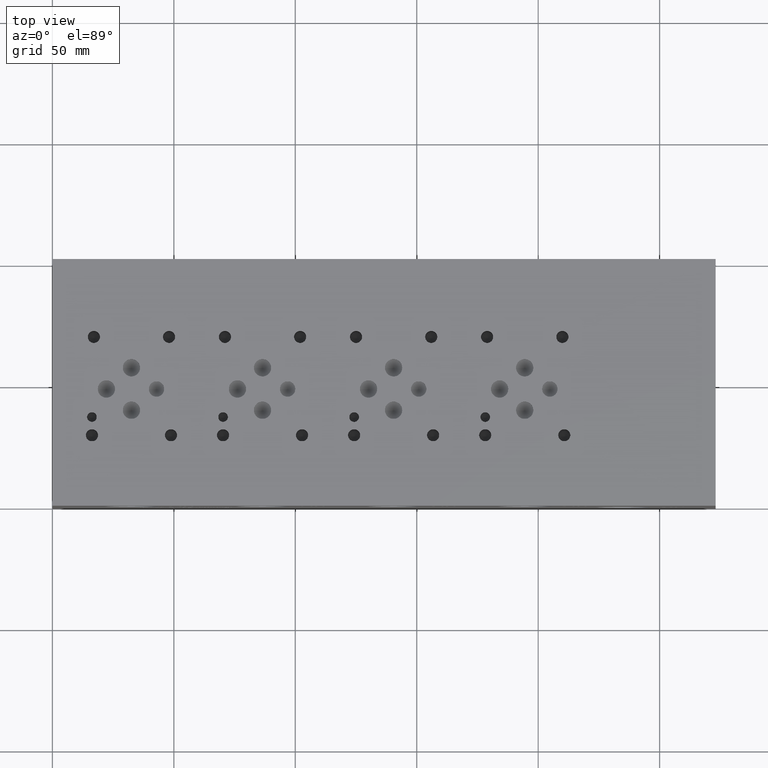
[diagram: clean part render]
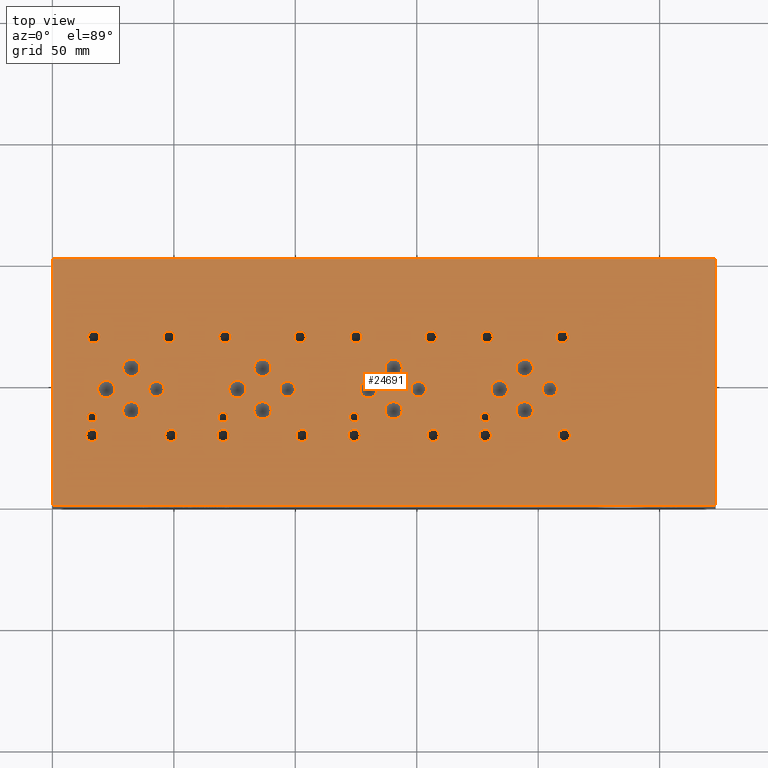
[diagram: same view with one face highlighted and labeled with its STEP entity id]
A machine part, top view. The second image highlights one B-rep face of the part: STEP entity #24691.
In plain terms, the highlighted planar face has unit normal (0, 0, 1).
Its self-contained STEP definition (entity closure, byte-faithful):
#641=CIRCLE('',#25882,2.5019);
#642=CIRCLE('',#25883,2.5019);
#648=CIRCLE('',#25893,2.5019);
#649=CIRCLE('',#25894,2.5019);
#655=CIRCLE('',#25904,2.5019);
#656=CIRCLE('',#25905,2.5019);
#662=CIRCLE('',#25915,2.5019);
#663=CIRCLE('',#25916,2.5019);
#669=CIRCLE('',#25926,2.5019);
#670=CIRCLE('',#25927,2.5019);
#676=CIRCLE('',#25937,2.5019);
#677=CIRCLE('',#25938,2.5019);
#683=CIRCLE('',#25948,2.5019);
#684=CIRCLE('',#25949,2.5019);
#690=CIRCLE('',#25959,2.5019);
#691=CIRCLE('',#25960,2.5019);
#697=CIRCLE('',#25970,2.5019);
#698=CIRCLE('',#25971,2.5019);
#704=CIRCLE('',#25981,2.5019);
#705=CIRCLE('',#25982,2.5019);
#711=CIRCLE('',#25992,2.5019);
#712=CIRCLE('',#25993,2.5019);
#718=CIRCLE('',#26003,2.5019);
#719=CIRCLE('',#26004,2.5019);
#722=CIRCLE('',#26010,3.175);
#723=CIRCLE('',#26011,3.175);
#726=CIRCLE('',#26016,3.175);
#727=CIRCLE('',#26017,3.175);
#730=CIRCLE('',#26022,3.175);
#731=CIRCLE('',#26023,3.175);
#734=CIRCLE('',#26028,3.175);
#735=CIRCLE('',#26029,3.175);
#738=CIRCLE('',#26034,3.5687);
#739=CIRCLE('',#26035,3.5687);
#742=CIRCLE('',#26040,3.5687);
#743=CIRCLE('',#26041,3.5687);
#746=CIRCLE('',#26046,3.5687);
#747=CIRCLE('',#26047,3.5687);
#750=CIRCLE('',#26052,3.5687);
#751=CIRCLE('',#26053,3.5687);
#754=CIRCLE('',#26058,3.5687);
#755=CIRCLE('',#26059,3.5687);
#758=CIRCLE('',#26064,3.5687);
#759=CIRCLE('',#26065,3.5687);
#762=CIRCLE('',#26070,3.5687);
#763=CIRCLE('',#26071,3.5687);
#766=CIRCLE('',#26076,3.5687);
#767=CIRCLE('',#26077,3.5687);
#770=CIRCLE('',#26082,3.5687);
#771=CIRCLE('',#26083,3.5687);
#774=CIRCLE('',#26088,3.5687);
#775=CIRCLE('',#26089,3.5687);
#778=CIRCLE('',#26094,3.5687);
#779=CIRCLE('',#26095,3.5687);
#782=CIRCLE('',#26100,3.5687);
#783=CIRCLE('',#26101,3.5687);
#786=CIRCLE('',#26106,1.9812);
#787=CIRCLE('',#26107,1.9812);
#790=CIRCLE('',#26112,1.9812);
#791=CIRCLE('',#26113,1.9812);
#794=CIRCLE('',#26118,1.9812);
#795=CIRCLE('',#26119,1.9812);
#798=CIRCLE('',#26124,1.9812);
#799=CIRCLE('',#26125,1.9812);
#805=CIRCLE('',#26134,2.5019);
#806=CIRCLE('',#26135,2.5019);
#812=CIRCLE('',#26145,2.5019);
#813=CIRCLE('',#26146,2.5019);
#819=CIRCLE('',#26156,2.5019);
#820=CIRCLE('',#26157,2.5019);
#826=CIRCLE('',#26167,2.5019);
#827=CIRCLE('',#26168,2.5019);
#1014=FACE_BOUND('',#4921,.T.);
#1015=FACE_BOUND('',#4922,.T.);
#1016=FACE_BOUND('',#4923,.T.);
#1017=FACE_BOUND('',#4924,.T.);
#1018=FACE_BOUND('',#4925,.T.);
#1019=FACE_BOUND('',#4926,.T.);
#1020=FACE_BOUND('',#4927,.T.);
#1021=FACE_BOUND('',#4928,.T.);
#1022=FACE_BOUND('',#4929,.T.);
#1023=FACE_BOUND('',#4930,.T.);
#1024=FACE_BOUND('',#4931,.T.);
#1025=FACE_BOUND('',#4932,.T.);
#1026=FACE_BOUND('',#4933,.T.);
#1027=FACE_BOUND('',#4934,.T.);
#1028=FACE_BOUND('',#4935,.T.);
#1029=FACE_BOUND('',#4936,.T.);
#1030=FACE_BOUND('',#4937,.T.);
#1031=FACE_BOUND('',#4938,.T.);
#1032=FACE_BOUND('',#4939,.T.);
#1033=FACE_BOUND('',#4940,.T.);
#1034=FACE_BOUND('',#4941,.T.);
#1035=FACE_BOUND('',#4942,.T.);
#1036=FACE_BOUND('',#4943,.T.);
#1037=FACE_BOUND('',#4944,.T.);
#1038=FACE_BOUND('',#4945,.T.);
#1039=FACE_BOUND('',#4946,.T.);
#1040=FACE_BOUND('',#4947,.T.);
#1041=FACE_BOUND('',#4948,.T.);
#1042=FACE_BOUND('',#4949,.T.);
#1043=FACE_BOUND('',#4950,.T.);
#1044=FACE_BOUND('',#4951,.T.);
#1045=FACE_BOUND('',#4952,.T.);
#1046=FACE_BOUND('',#4953,.T.);
#1047=FACE_BOUND('',#4954,.T.);
#1048=FACE_BOUND('',#4955,.T.);
#1049=FACE_BOUND('',#4956,.T.);
#3463=FACE_OUTER_BOUND('',#4920,.T.);
#4920=EDGE_LOOP('',(#21766,#21767,#21768,#21769));
#4921=EDGE_LOOP('',(#21770,#21771));
#4922=EDGE_LOOP('',(#21772,#21773));
#4923=EDGE_LOOP('',(#21774,#21775));
#4924=EDGE_LOOP('',(#21776,#21777));
#4925=EDGE_LOOP('',(#21778,#21779));
#4926=EDGE_LOOP('',(#21780,#21781));
#4927=EDGE_LOOP('',(#21782,#21783));
#4928=EDGE_LOOP('',(#21784,#21785));
#4929=EDGE_LOOP('',(#21786,#21787));
#4930=EDGE_LOOP('',(#21788,#21789));
#4931=EDGE_LOOP('',(#21790,#21791));
#4932=EDGE_LOOP('',(#21792,#21793));
#4933=EDGE_LOOP('',(#21794,#21795));
#4934=EDGE_LOOP('',(#21796,#21797));
#4935=EDGE_LOOP('',(#21798,#21799));
#4936=EDGE_LOOP('',(#21800,#21801));
#4937=EDGE_LOOP('',(#21802,#21803));
#4938=EDGE_LOOP('',(#21804,#21805));
#4939=EDGE_LOOP('',(#21806,#21807));
#4940=EDGE_LOOP('',(#21808,#21809));
#4941=EDGE_LOOP('',(#21810,#21811));
#4942=EDGE_LOOP('',(#21812,#21813));
#4943=EDGE_LOOP('',(#21814,#21815));
#4944=EDGE_LOOP('',(#21816,#21817));
#4945=EDGE_LOOP('',(#21818,#21819));
#4946=EDGE_LOOP('',(#21820,#21821));
#4947=EDGE_LOOP('',(#21822,#21823));
#4948=EDGE_LOOP('',(#21824,#21825));
#4949=EDGE_LOOP('',(#21826,#21827));
#4950=EDGE_LOOP('',(#21828,#21829));
#4951=EDGE_LOOP('',(#21830,#21831));
#4952=EDGE_LOOP('',(#21832,#21833));
#4953=EDGE_LOOP('',(#21834,#21835));
#4954=EDGE_LOOP('',(#21836,#21837));
#4955=EDGE_LOOP('',(#21838,#21839));
#4956=EDGE_LOOP('',(#21840,#21841));
#5395=LINE('',#33496,#7491);
#5657=LINE('',#34897,#7753);
#5716=LINE('',#35160,#7812);
#6055=LINE('',#37522,#8151);
#7491=VECTOR('',#26959,10.);
#7753=VECTOR('',#27401,10.);
#7812=VECTOR('',#27506,10.);
#8151=VECTOR('',#28035,10.);
#9574=VERTEX_POINT('',#33493);
#9575=VERTEX_POINT('',#33495);
#9824=VERTEX_POINT('',#34896);
#9877=VERTEX_POINT('',#35158);
#11313=VERTEX_POINT('',#42728);
#11314=VERTEX_POINT('',#42729);
#11321=VERTEX_POINT('',#42750);
#11322=VERTEX_POINT('',#42751);
#11329=VERTEX_POINT('',#42772);
#11330=VERTEX_POINT('',#42773);
#11337=VERTEX_POINT('',#42794);
#11338=VERTEX_POINT('',#42795);
#11345=VERTEX_POINT('',#42816);
#11346=VERTEX_POINT('',#42817);
#11353=VERTEX_POINT('',#42838);
#11354=VERTEX_POINT('',#42839);
#11361=VERTEX_POINT('',#42860);
#11362=VERTEX_POINT('',#42861);
#11369=VERTEX_POINT('',#42882);
#11370=VERTEX_POINT('',#42883);
#11377=VERTEX_POINT('',#42904);
#11378=VERTEX_POINT('',#42905);
#11385=VERTEX_POINT('',#42926);
#11386=VERTEX_POINT('',#42927);
#11393=VERTEX_POINT('',#42948);
#11394=VERTEX_POINT('',#42949);
#11401=VERTEX_POINT('',#42970);
#11402=VERTEX_POINT('',#42971);
#11406=VERTEX_POINT('',#42985);
#11407=VERTEX_POINT('',#42986);
#11411=VERTEX_POINT('',#42998);
#11412=VERTEX_POINT('',#42999);
#11416=VERTEX_POINT('',#43011);
#11417=VERTEX_POINT('',#43012);
#11421=VERTEX_POINT('',#43024);
#11422=VERTEX_POINT('',#43025);
#11426=VERTEX_POINT('',#43037);
#11427=VERTEX_POINT('',#43038);
#11431=VERTEX_POINT('',#43050);
#11432=VERTEX_POINT('',#43051);
#11436=VERTEX_POINT('',#43063);
#11437=VERTEX_POINT('',#43064);
#11441=VERTEX_POINT('',#43076);
#11442=VERTEX_POINT('',#43077);
#11446=VERTEX_POINT('',#43089);
#11447=VERTEX_POINT('',#43090);
#11451=VERTEX_POINT('',#43102);
#11452=VERTEX_POINT('',#43103);
#11456=VERTEX_POINT('',#43115);
#11457=VERTEX_POINT('',#43116);
#11461=VERTEX_POINT('',#43128);
#11462=VERTEX_POINT('',#43129);
#11466=VERTEX_POINT('',#43141);
#11467=VERTEX_POINT('',#43142);
#11471=VERTEX_POINT('',#43154);
#11472=VERTEX_POINT('',#43155);
#11476=VERTEX_POINT('',#43167);
#11477=VERTEX_POINT('',#43168);
#11481=VERTEX_POINT('',#43180);
#11482=VERTEX_POINT('',#43181);
#11486=VERTEX_POINT('',#43193);
#11487=VERTEX_POINT('',#43194);
#11491=VERTEX_POINT('',#43206);
#11492=VERTEX_POINT('',#43207);
#11496=VERTEX_POINT('',#43219);
#11497=VERTEX_POINT('',#43220);
#11501=VERTEX_POINT('',#43232);
#11502=VERTEX_POINT('',#43233);
#11509=VERTEX_POINT('',#43252);
#11510=VERTEX_POINT('',#43253);
#11517=VERTEX_POINT('',#43274);
#11518=VERTEX_POINT('',#43275);
#11525=VERTEX_POINT('',#43296);
#11526=VERTEX_POINT('',#43297);
#11533=VERTEX_POINT('',#43318);
#11534=VERTEX_POINT('',#43319);
#12156=EDGE_CURVE('',#9575,#9574,#5395,.T.);
#12526=EDGE_CURVE('',#9824,#9575,#5657,.T.);
#12605=EDGE_CURVE('',#9574,#9877,#5716,.T.);
#13144=EDGE_CURVE('',#9877,#9824,#6055,.T.);
#14699=EDGE_CURVE('',#11313,#11314,#641,.T.);
#14700=EDGE_CURVE('',#11314,#11313,#642,.T.);
#14709=EDGE_CURVE('',#11321,#11322,#648,.T.);
#14710=EDGE_CURVE('',#11322,#11321,#649,.T.);
#14719=EDGE_CURVE('',#11329,#11330,#655,.T.);
#14720=EDGE_CURVE('',#11330,#11329,#656,.T.);
#14729=EDGE_CURVE('',#11337,#11338,#662,.T.);
#14730=EDGE_CURVE('',#11338,#11337,#663,.T.);
#14739=EDGE_CURVE('',#11345,#11346,#669,.T.);
#14740=EDGE_CURVE('',#11346,#11345,#670,.T.);
#14749=EDGE_CURVE('',#11353,#11354,#676,.T.);
#14750=EDGE_CURVE('',#11354,#11353,#677,.T.);
#14759=EDGE_CURVE('',#11361,#11362,#683,.T.);
#14760=EDGE_CURVE('',#11362,#11361,#684,.T.);
#14769=EDGE_CURVE('',#11369,#11370,#690,.T.);
#14770=EDGE_CURVE('',#11370,#11369,#691,.T.);
#14779=EDGE_CURVE('',#11377,#11378,#697,.T.);
#14780=EDGE_CURVE('',#11378,#11377,#698,.T.);
#14789=EDGE_CURVE('',#11385,#11386,#704,.T.);
#14790=EDGE_CURVE('',#11386,#11385,#705,.T.);
#14799=EDGE_CURVE('',#11393,#11394,#711,.T.);
#14800=EDGE_CURVE('',#11394,#11393,#712,.T.);
#14809=EDGE_CURVE('',#11401,#11402,#718,.T.);
#14810=EDGE_CURVE('',#11402,#11401,#719,.T.);
#14816=EDGE_CURVE('',#11406,#11407,#722,.T.);
#14817=EDGE_CURVE('',#11407,#11406,#723,.T.);
#14822=EDGE_CURVE('',#11411,#11412,#726,.T.);
#14823=EDGE_CURVE('',#11412,#11411,#727,.T.);
#14828=EDGE_CURVE('',#11416,#11417,#730,.T.);
#14829=EDGE_CURVE('',#11417,#11416,#731,.T.);
#14834=EDGE_CURVE('',#11421,#11422,#734,.T.);
#14835=EDGE_CURVE('',#11422,#11421,#735,.T.);
#14840=EDGE_CURVE('',#11426,#11427,#738,.T.);
#14841=EDGE_CURVE('',#11427,#11426,#739,.T.);
#14846=EDGE_CURVE('',#11431,#11432,#742,.T.);
#14847=EDGE_CURVE('',#11432,#11431,#743,.T.);
#14852=EDGE_CURVE('',#11436,#11437,#746,.T.);
#14853=EDGE_CURVE('',#11437,#11436,#747,.T.);
#14858=EDGE_CURVE('',#11441,#11442,#750,.T.);
#14859=EDGE_CURVE('',#11442,#11441,#751,.T.);
#14864=EDGE_CURVE('',#11446,#11447,#754,.T.);
#14865=EDGE_CURVE('',#11447,#11446,#755,.T.);
#14870=EDGE_CURVE('',#11451,#11452,#758,.T.);
#14871=EDGE_CURVE('',#11452,#11451,#759,.T.);
#14876=EDGE_CURVE('',#11456,#11457,#762,.T.);
#14877=EDGE_CURVE('',#11457,#11456,#763,.T.);
#14882=EDGE_CURVE('',#11461,#11462,#766,.T.);
#14883=EDGE_CURVE('',#11462,#11461,#767,.T.);
#14888=EDGE_CURVE('',#11466,#11467,#770,.T.);
#14889=EDGE_CURVE('',#11467,#11466,#771,.T.);
#14894=EDGE_CURVE('',#11471,#11472,#774,.T.);
#14895=EDGE_CURVE('',#11472,#11471,#775,.T.);
#14900=EDGE_CURVE('',#11476,#11477,#778,.T.);
#14901=EDGE_CURVE('',#11477,#11476,#779,.T.);
#14906=EDGE_CURVE('',#11481,#11482,#782,.T.);
#14907=EDGE_CURVE('',#11482,#11481,#783,.T.);
#14912=EDGE_CURVE('',#11486,#11487,#786,.T.);
#14913=EDGE_CURVE('',#11487,#11486,#787,.T.);
#14918=EDGE_CURVE('',#11491,#11492,#790,.T.);
#14919=EDGE_CURVE('',#11492,#11491,#791,.T.);
#14924=EDGE_CURVE('',#11496,#11497,#794,.T.);
#14925=EDGE_CURVE('',#11497,#11496,#795,.T.);
#14930=EDGE_CURVE('',#11501,#11502,#798,.T.);
#14931=EDGE_CURVE('',#11502,#11501,#799,.T.);
#14939=EDGE_CURVE('',#11509,#11510,#805,.T.);
#14940=EDGE_CURVE('',#11510,#11509,#806,.T.);
#14949=EDGE_CURVE('',#11517,#11518,#812,.T.);
#14950=EDGE_CURVE('',#11518,#11517,#813,.T.);
#14959=EDGE_CURVE('',#11525,#11526,#819,.T.);
#14960=EDGE_CURVE('',#11526,#11525,#820,.T.);
#14969=EDGE_CURVE('',#11533,#11534,#826,.T.);
#14970=EDGE_CURVE('',#11534,#11533,#827,.T.);
#21766=ORIENTED_EDGE('',*,*,#13144,.T.);
#21767=ORIENTED_EDGE('',*,*,#12526,.T.);
#21768=ORIENTED_EDGE('',*,*,#12156,.T.);
#21769=ORIENTED_EDGE('',*,*,#12605,.T.);
#21770=ORIENTED_EDGE('',*,*,#14699,.T.);
#21771=ORIENTED_EDGE('',*,*,#14700,.T.);
#21772=ORIENTED_EDGE('',*,*,#14709,.T.);
#21773=ORIENTED_EDGE('',*,*,#14710,.T.);
#21774=ORIENTED_EDGE('',*,*,#14719,.T.);
#21775=ORIENTED_EDGE('',*,*,#14720,.T.);
#21776=ORIENTED_EDGE('',*,*,#14729,.T.);
#21777=ORIENTED_EDGE('',*,*,#14730,.T.);
#21778=ORIENTED_EDGE('',*,*,#14739,.T.);
#21779=ORIENTED_EDGE('',*,*,#14740,.T.);
#21780=ORIENTED_EDGE('',*,*,#14749,.T.);
#21781=ORIENTED_EDGE('',*,*,#14750,.T.);
#21782=ORIENTED_EDGE('',*,*,#14759,.T.);
#21783=ORIENTED_EDGE('',*,*,#14760,.T.);
#21784=ORIENTED_EDGE('',*,*,#14769,.T.);
#21785=ORIENTED_EDGE('',*,*,#14770,.T.);
#21786=ORIENTED_EDGE('',*,*,#14779,.T.);
#21787=ORIENTED_EDGE('',*,*,#14780,.T.);
#21788=ORIENTED_EDGE('',*,*,#14789,.T.);
#21789=ORIENTED_EDGE('',*,*,#14790,.T.);
#21790=ORIENTED_EDGE('',*,*,#14799,.T.);
#21791=ORIENTED_EDGE('',*,*,#14800,.T.);
#21792=ORIENTED_EDGE('',*,*,#14809,.T.);
#21793=ORIENTED_EDGE('',*,*,#14810,.T.);
#21794=ORIENTED_EDGE('',*,*,#14816,.T.);
#21795=ORIENTED_EDGE('',*,*,#14817,.T.);
#21796=ORIENTED_EDGE('',*,*,#14822,.T.);
#21797=ORIENTED_EDGE('',*,*,#14823,.T.);
#21798=ORIENTED_EDGE('',*,*,#14828,.T.);
#21799=ORIENTED_EDGE('',*,*,#14829,.T.);
#21800=ORIENTED_EDGE('',*,*,#14834,.T.);
#21801=ORIENTED_EDGE('',*,*,#14835,.T.);
#21802=ORIENTED_EDGE('',*,*,#14840,.T.);
#21803=ORIENTED_EDGE('',*,*,#14841,.T.);
#21804=ORIENTED_EDGE('',*,*,#14846,.T.);
#21805=ORIENTED_EDGE('',*,*,#14847,.T.);
#21806=ORIENTED_EDGE('',*,*,#14852,.T.);
#21807=ORIENTED_EDGE('',*,*,#14853,.T.);
#21808=ORIENTED_EDGE('',*,*,#14858,.T.);
#21809=ORIENTED_EDGE('',*,*,#14859,.T.);
#21810=ORIENTED_EDGE('',*,*,#14864,.T.);
#21811=ORIENTED_EDGE('',*,*,#14865,.T.);
#21812=ORIENTED_EDGE('',*,*,#14870,.T.);
#21813=ORIENTED_EDGE('',*,*,#14871,.T.);
#21814=ORIENTED_EDGE('',*,*,#14876,.T.);
#21815=ORIENTED_EDGE('',*,*,#14877,.T.);
#21816=ORIENTED_EDGE('',*,*,#14882,.T.);
#21817=ORIENTED_EDGE('',*,*,#14883,.T.);
#21818=ORIENTED_EDGE('',*,*,#14888,.T.);
#21819=ORIENTED_EDGE('',*,*,#14889,.T.);
#21820=ORIENTED_EDGE('',*,*,#14894,.T.);
#21821=ORIENTED_EDGE('',*,*,#14895,.T.);
#21822=ORIENTED_EDGE('',*,*,#14900,.T.);
#21823=ORIENTED_EDGE('',*,*,#14901,.T.);
#21824=ORIENTED_EDGE('',*,*,#14906,.T.);
#21825=ORIENTED_EDGE('',*,*,#14907,.T.);
#21826=ORIENTED_EDGE('',*,*,#14912,.T.);
#21827=ORIENTED_EDGE('',*,*,#14913,.T.);
#21828=ORIENTED_EDGE('',*,*,#14918,.T.);
#21829=ORIENTED_EDGE('',*,*,#14919,.T.);
#21830=ORIENTED_EDGE('',*,*,#14924,.T.);
#21831=ORIENTED_EDGE('',*,*,#14925,.T.);
#21832=ORIENTED_EDGE('',*,*,#14930,.T.);
#21833=ORIENTED_EDGE('',*,*,#14931,.T.);
#21834=ORIENTED_EDGE('',*,*,#14939,.T.);
#21835=ORIENTED_EDGE('',*,*,#14940,.T.);
#21836=ORIENTED_EDGE('',*,*,#14949,.T.);
#21837=ORIENTED_EDGE('',*,*,#14950,.T.);
#21838=ORIENTED_EDGE('',*,*,#14959,.T.);
#21839=ORIENTED_EDGE('',*,*,#14960,.T.);
#21840=ORIENTED_EDGE('',*,*,#14969,.T.);
#21841=ORIENTED_EDGE('',*,*,#14970,.T.);
#22502=PLANE('',#26174);
#24691=ADVANCED_FACE('',(#3463,#1014,#1015,#1016,#1017,#1018,#1019,#1020,
#1021,#1022,#1023,#1024,#1025,#1026,#1027,#1028,#1029,#1030,#1031,#1032,
#1033,#1034,#1035,#1036,#1037,#1038,#1039,#1040,#1041,#1042,#1043,#1044,
#1045,#1046,#1047,#1048,#1049),#22502,.T.);
#25882=AXIS2_PLACEMENT_3D('',#42730,#30537,#30538);
#25883=AXIS2_PLACEMENT_3D('',#42731,#30539,#30540);
#25893=AXIS2_PLACEMENT_3D('',#42752,#30562,#30563);
#25894=AXIS2_PLACEMENT_3D('',#42753,#30564,#30565);
#25904=AXIS2_PLACEMENT_3D('',#42774,#30587,#30588);
#25905=AXIS2_PLACEMENT_3D('',#42775,#30589,#30590);
#25915=AXIS2_PLACEMENT_3D('',#42796,#30612,#30613);
#25916=AXIS2_PLACEMENT_3D('',#42797,#30614,#30615);
#25926=AXIS2_PLACEMENT_3D('',#42818,#30637,#30638);
#25927=AXIS2_PLACEMENT_3D('',#42819,#30639,#30640);
#25937=AXIS2_PLACEMENT_3D('',#42840,#30662,#30663);
#25938=AXIS2_PLACEMENT_3D('',#42841,#30664,#30665);
#25948=AXIS2_PLACEMENT_3D('',#42862,#30687,#30688);
#25949=AXIS2_PLACEMENT_3D('',#42863,#30689,#30690);
#25959=AXIS2_PLACEMENT_3D('',#42884,#30712,#30713);
#25960=AXIS2_PLACEMENT_3D('',#42885,#30714,#30715);
#25970=AXIS2_PLACEMENT_3D('',#42906,#30737,#30738);
#25971=AXIS2_PLACEMENT_3D('',#42907,#30739,#30740);
#25981=AXIS2_PLACEMENT_3D('',#42928,#30762,#30763);
#25982=AXIS2_PLACEMENT_3D('',#42929,#30764,#30765);
#25992=AXIS2_PLACEMENT_3D('',#42950,#30787,#30788);
#25993=AXIS2_PLACEMENT_3D('',#42951,#30789,#30790);
#26003=AXIS2_PLACEMENT_3D('',#42972,#30812,#30813);
#26004=AXIS2_PLACEMENT_3D('',#42973,#30814,#30815);
#26010=AXIS2_PLACEMENT_3D('',#42987,#30829,#30830);
#26011=AXIS2_PLACEMENT_3D('',#42988,#30831,#30832);
#26016=AXIS2_PLACEMENT_3D('',#43000,#30843,#30844);
#26017=AXIS2_PLACEMENT_3D('',#43001,#30845,#30846);
#26022=AXIS2_PLACEMENT_3D('',#43013,#30857,#30858);
#26023=AXIS2_PLACEMENT_3D('',#43014,#30859,#30860);
#26028=AXIS2_PLACEMENT_3D('',#43026,#30871,#30872);
#26029=AXIS2_PLACEMENT_3D('',#43027,#30873,#30874);
#26034=AXIS2_PLACEMENT_3D('',#43039,#30885,#30886);
#26035=AXIS2_PLACEMENT_3D('',#43040,#30887,#30888);
#26040=AXIS2_PLACEMENT_3D('',#43052,#30899,#30900);
#26041=AXIS2_PLACEMENT_3D('',#43053,#30901,#30902);
#26046=AXIS2_PLACEMENT_3D('',#43065,#30913,#30914);
#26047=AXIS2_PLACEMENT_3D('',#43066,#30915,#30916);
#26052=AXIS2_PLACEMENT_3D('',#43078,#30927,#30928);
#26053=AXIS2_PLACEMENT_3D('',#43079,#30929,#30930);
#26058=AXIS2_PLACEMENT_3D('',#43091,#30941,#30942);
#26059=AXIS2_PLACEMENT_3D('',#43092,#30943,#30944);
#26064=AXIS2_PLACEMENT_3D('',#43104,#30955,#30956);
#26065=AXIS2_PLACEMENT_3D('',#43105,#30957,#30958);
#26070=AXIS2_PLACEMENT_3D('',#43117,#30969,#30970);
#26071=AXIS2_PLACEMENT_3D('',#43118,#30971,#30972);
#26076=AXIS2_PLACEMENT_3D('',#43130,#30983,#30984);
#26077=AXIS2_PLACEMENT_3D('',#43131,#30985,#30986);
#26082=AXIS2_PLACEMENT_3D('',#43143,#30997,#30998);
#26083=AXIS2_PLACEMENT_3D('',#43144,#30999,#31000);
#26088=AXIS2_PLACEMENT_3D('',#43156,#31011,#31012);
#26089=AXIS2_PLACEMENT_3D('',#43157,#31013,#31014);
#26094=AXIS2_PLACEMENT_3D('',#43169,#31025,#31026);
#26095=AXIS2_PLACEMENT_3D('',#43170,#31027,#31028);
#26100=AXIS2_PLACEMENT_3D('',#43182,#31039,#31040);
#26101=AXIS2_PLACEMENT_3D('',#43183,#31041,#31042);
#26106=AXIS2_PLACEMENT_3D('',#43195,#31053,#31054);
#26107=AXIS2_PLACEMENT_3D('',#43196,#31055,#31056);
#26112=AXIS2_PLACEMENT_3D('',#43208,#31067,#31068);
#26113=AXIS2_PLACEMENT_3D('',#43209,#31069,#31070);
#26118=AXIS2_PLACEMENT_3D('',#43221,#31081,#31082);
#26119=AXIS2_PLACEMENT_3D('',#43222,#31083,#31084);
#26124=AXIS2_PLACEMENT_3D('',#43234,#31095,#31096);
#26125=AXIS2_PLACEMENT_3D('',#43235,#31097,#31098);
#26134=AXIS2_PLACEMENT_3D('',#43254,#31117,#31118);
#26135=AXIS2_PLACEMENT_3D('',#43255,#31119,#31120);
#26145=AXIS2_PLACEMENT_3D('',#43276,#31142,#31143);
#26146=AXIS2_PLACEMENT_3D('',#43277,#31144,#31145);
#26156=AXIS2_PLACEMENT_3D('',#43298,#31167,#31168);
#26157=AXIS2_PLACEMENT_3D('',#43299,#31169,#31170);
#26167=AXIS2_PLACEMENT_3D('',#43320,#31192,#31193);
#26168=AXIS2_PLACEMENT_3D('',#43321,#31194,#31195);
#26174=AXIS2_PLACEMENT_3D('',#43329,#31208,#31209);
#26959=DIRECTION('',(-1.,0.,0.));
#27401=DIRECTION('',(0.,1.,0.));
#27506=DIRECTION('',(0.,-1.,0.));
#28035=DIRECTION('',(1.,0.,0.));
#30537=DIRECTION('center_axis',(0.,0.,-1.));
#30538=DIRECTION('ref_axis',(1.,0.,0.));
#30539=DIRECTION('center_axis',(0.,0.,-1.));
#30540=DIRECTION('ref_axis',(1.,0.,0.));
#30562=DIRECTION('center_axis',(0.,0.,-1.));
#30563=DIRECTION('ref_axis',(1.,0.,0.));
#30564=DIRECTION('center_axis',(0.,0.,-1.));
#30565=DIRECTION('ref_axis',(1.,0.,0.));
#30587=DIRECTION('center_axis',(0.,0.,-1.));
#30588=DIRECTION('ref_axis',(1.,0.,0.));
#30589=DIRECTION('center_axis',(0.,0.,-1.));
#30590=DIRECTION('ref_axis',(1.,0.,0.));
#30612=DIRECTION('center_axis',(0.,0.,-1.));
#30613=DIRECTION('ref_axis',(1.,0.,0.));
#30614=DIRECTION('center_axis',(0.,0.,-1.));
#30615=DIRECTION('ref_axis',(1.,0.,0.));
#30637=DIRECTION('center_axis',(0.,0.,-1.));
#30638=DIRECTION('ref_axis',(1.,0.,0.));
#30639=DIRECTION('center_axis',(0.,0.,-1.));
#30640=DIRECTION('ref_axis',(1.,0.,0.));
#30662=DIRECTION('center_axis',(0.,0.,-1.));
#30663=DIRECTION('ref_axis',(1.,0.,0.));
#30664=DIRECTION('center_axis',(0.,0.,-1.));
#30665=DIRECTION('ref_axis',(1.,0.,0.));
#30687=DIRECTION('center_axis',(0.,0.,-1.));
#30688=DIRECTION('ref_axis',(1.,0.,0.));
#30689=DIRECTION('center_axis',(0.,0.,-1.));
#30690=DIRECTION('ref_axis',(1.,0.,0.));
#30712=DIRECTION('center_axis',(0.,0.,-1.));
#30713=DIRECTION('ref_axis',(1.,0.,0.));
#30714=DIRECTION('center_axis',(0.,0.,-1.));
#30715=DIRECTION('ref_axis',(1.,0.,0.));
#30737=DIRECTION('center_axis',(0.,0.,-1.));
#30738=DIRECTION('ref_axis',(1.,0.,0.));
#30739=DIRECTION('center_axis',(0.,0.,-1.));
#30740=DIRECTION('ref_axis',(1.,0.,0.));
#30762=DIRECTION('center_axis',(0.,0.,-1.));
#30763=DIRECTION('ref_axis',(1.,0.,0.));
#30764=DIRECTION('center_axis',(0.,0.,-1.));
#30765=DIRECTION('ref_axis',(1.,0.,0.));
#30787=DIRECTION('center_axis',(0.,0.,-1.));
#30788=DIRECTION('ref_axis',(1.,0.,0.));
#30789=DIRECTION('center_axis',(0.,0.,-1.));
#30790=DIRECTION('ref_axis',(1.,0.,0.));
#30812=DIRECTION('center_axis',(0.,0.,-1.));
#30813=DIRECTION('ref_axis',(1.,0.,0.));
#30814=DIRECTION('center_axis',(0.,0.,-1.));
#30815=DIRECTION('ref_axis',(1.,0.,0.));
#30829=DIRECTION('center_axis',(0.,0.,-1.));
#30830=DIRECTION('ref_axis',(1.,0.,0.));
#30831=DIRECTION('center_axis',(0.,0.,-1.));
#30832=DIRECTION('ref_axis',(1.,0.,0.));
#30843=DIRECTION('center_axis',(0.,0.,-1.));
#30844=DIRECTION('ref_axis',(1.,0.,0.));
#30845=DIRECTION('center_axis',(0.,0.,-1.));
#30846=DIRECTION('ref_axis',(1.,0.,0.));
#30857=DIRECTION('center_axis',(0.,0.,-1.));
#30858=DIRECTION('ref_axis',(1.,0.,0.));
#30859=DIRECTION('center_axis',(0.,0.,-1.));
#30860=DIRECTION('ref_axis',(1.,0.,0.));
#30871=DIRECTION('center_axis',(0.,0.,-1.));
#30872=DIRECTION('ref_axis',(1.,0.,0.));
#30873=DIRECTION('center_axis',(0.,0.,-1.));
#30874=DIRECTION('ref_axis',(1.,0.,0.));
#30885=DIRECTION('center_axis',(0.,0.,-1.));
#30886=DIRECTION('ref_axis',(1.,0.,0.));
#30887=DIRECTION('center_axis',(0.,0.,-1.));
#30888=DIRECTION('ref_axis',(1.,0.,0.));
#30899=DIRECTION('center_axis',(0.,0.,-1.));
#30900=DIRECTION('ref_axis',(1.,0.,0.));
#30901=DIRECTION('center_axis',(0.,0.,-1.));
#30902=DIRECTION('ref_axis',(1.,0.,0.));
#30913=DIRECTION('center_axis',(0.,0.,-1.));
#30914=DIRECTION('ref_axis',(1.,0.,0.));
#30915=DIRECTION('center_axis',(0.,0.,-1.));
#30916=DIRECTION('ref_axis',(1.,0.,0.));
#30927=DIRECTION('center_axis',(0.,0.,-1.));
#30928=DIRECTION('ref_axis',(1.,0.,0.));
#30929=DIRECTION('center_axis',(0.,0.,-1.));
#30930=DIRECTION('ref_axis',(1.,0.,0.));
#30941=DIRECTION('center_axis',(0.,0.,-1.));
#30942=DIRECTION('ref_axis',(1.,0.,0.));
#30943=DIRECTION('center_axis',(0.,0.,-1.));
#30944=DIRECTION('ref_axis',(1.,0.,0.));
#30955=DIRECTION('center_axis',(0.,0.,-1.));
#30956=DIRECTION('ref_axis',(1.,0.,0.));
#30957=DIRECTION('center_axis',(0.,0.,-1.));
#30958=DIRECTION('ref_axis',(1.,0.,0.));
#30969=DIRECTION('center_axis',(0.,0.,-1.));
#30970=DIRECTION('ref_axis',(1.,0.,0.));
#30971=DIRECTION('center_axis',(0.,0.,-1.));
#30972=DIRECTION('ref_axis',(1.,0.,0.));
#30983=DIRECTION('center_axis',(0.,0.,-1.));
#30984=DIRECTION('ref_axis',(1.,0.,0.));
#30985=DIRECTION('center_axis',(0.,0.,-1.));
#30986=DIRECTION('ref_axis',(1.,0.,0.));
#30997=DIRECTION('center_axis',(0.,0.,-1.));
#30998=DIRECTION('ref_axis',(1.,0.,0.));
#30999=DIRECTION('center_axis',(0.,0.,-1.));
#31000=DIRECTION('ref_axis',(1.,0.,0.));
#31011=DIRECTION('center_axis',(0.,0.,-1.));
#31012=DIRECTION('ref_axis',(1.,0.,0.));
#31013=DIRECTION('center_axis',(0.,0.,-1.));
#31014=DIRECTION('ref_axis',(1.,0.,0.));
#31025=DIRECTION('center_axis',(0.,0.,-1.));
#31026=DIRECTION('ref_axis',(1.,0.,0.));
#31027=DIRECTION('center_axis',(0.,0.,-1.));
#31028=DIRECTION('ref_axis',(1.,0.,0.));
#31039=DIRECTION('center_axis',(0.,0.,-1.));
#31040=DIRECTION('ref_axis',(1.,0.,0.));
#31041=DIRECTION('center_axis',(0.,0.,-1.));
#31042=DIRECTION('ref_axis',(1.,0.,0.));
#31053=DIRECTION('center_axis',(0.,0.,-1.));
#31054=DIRECTION('ref_axis',(1.,0.,0.));
#31055=DIRECTION('center_axis',(0.,0.,-1.));
#31056=DIRECTION('ref_axis',(1.,0.,0.));
#31067=DIRECTION('center_axis',(0.,0.,-1.));
#31068=DIRECTION('ref_axis',(1.,0.,0.));
#31069=DIRECTION('center_axis',(0.,0.,-1.));
#31070=DIRECTION('ref_axis',(1.,0.,0.));
#31081=DIRECTION('center_axis',(0.,0.,-1.));
#31082=DIRECTION('ref_axis',(1.,0.,0.));
#31083=DIRECTION('center_axis',(0.,0.,-1.));
#31084=DIRECTION('ref_axis',(1.,0.,0.));
#31095=DIRECTION('center_axis',(0.,0.,-1.));
#31096=DIRECTION('ref_axis',(1.,0.,0.));
#31097=DIRECTION('center_axis',(0.,0.,-1.));
#31098=DIRECTION('ref_axis',(1.,0.,0.));
#31117=DIRECTION('center_axis',(0.,0.,-1.));
#31118=DIRECTION('ref_axis',(1.,0.,0.));
#31119=DIRECTION('center_axis',(0.,0.,-1.));
#31120=DIRECTION('ref_axis',(1.,0.,0.));
#31142=DIRECTION('center_axis',(0.,0.,-1.));
#31143=DIRECTION('ref_axis',(1.,0.,0.));
#31144=DIRECTION('center_axis',(0.,0.,-1.));
#31145=DIRECTION('ref_axis',(1.,0.,0.));
#31167=DIRECTION('center_axis',(0.,0.,-1.));
#31168=DIRECTION('ref_axis',(1.,0.,0.));
#31169=DIRECTION('center_axis',(0.,0.,-1.));
#31170=DIRECTION('ref_axis',(1.,0.,0.));
#31192=DIRECTION('center_axis',(0.,0.,-1.));
#31193=DIRECTION('ref_axis',(1.,0.,0.));
#31194=DIRECTION('center_axis',(0.,0.,-1.));
#31195=DIRECTION('ref_axis',(1.,0.,0.));
#31208=DIRECTION('center_axis',(0.,0.,1.));
#31209=DIRECTION('ref_axis',(1.,0.,0.));
#33493=CARTESIAN_POINT('',(0.,101.6,76.2));
#33495=CARTESIAN_POINT('',(273.05,101.6,76.2));
#33496=CARTESIAN_POINT('',(273.05,101.6,76.2));
#34896=CARTESIAN_POINT('',(273.05,0.,76.2));
#34897=CARTESIAN_POINT('',(273.05,0.,76.2));
#35158=CARTESIAN_POINT('',(0.,0.,76.2));
#35160=CARTESIAN_POINT('',(0.,101.6,76.2));
#37522=CARTESIAN_POINT('',(0.,0.,76.2));
#42728=CARTESIAN_POINT('',(213.2203,28.9814,76.2));
#42729=CARTESIAN_POINT('',(208.2165,28.9814,76.2));
#42730=CARTESIAN_POINT('Origin',(210.7184,28.9814,76.2));
#42731=CARTESIAN_POINT('Origin',(210.7184,28.9814,76.2));
#42750=CARTESIAN_POINT('',(181.4703,69.469,76.2));
#42751=CARTESIAN_POINT('',(176.4665,69.469,76.2));
#42752=CARTESIAN_POINT('Origin',(178.9684,69.469,76.2));
#42753=CARTESIAN_POINT('Origin',(178.9684,69.469,76.2));
#42772=CARTESIAN_POINT('',(159.2453,28.9814,76.2));
#42773=CARTESIAN_POINT('',(154.2415,28.9814,76.2));
#42774=CARTESIAN_POINT('Origin',(156.7434,28.9814,76.2));
#42775=CARTESIAN_POINT('Origin',(156.7434,28.9814,76.2));
#42794=CARTESIAN_POINT('',(127.4953,69.469,76.2));
#42795=CARTESIAN_POINT('',(122.4915,69.469,76.2));
#42796=CARTESIAN_POINT('Origin',(124.9934,69.469,76.2));
#42797=CARTESIAN_POINT('Origin',(124.9934,69.469,76.2));
#42816=CARTESIAN_POINT('',(105.2703,28.9814,76.2));
#42817=CARTESIAN_POINT('',(100.2665,28.9814,76.2));
#42818=CARTESIAN_POINT('Origin',(102.7684,28.9814,76.2));
#42819=CARTESIAN_POINT('Origin',(102.7684,28.9814,76.2));
#42838=CARTESIAN_POINT('',(73.5203,69.469,76.2));
#42839=CARTESIAN_POINT('',(68.5165,69.469,76.2));
#42840=CARTESIAN_POINT('Origin',(71.0184,69.469,76.2));
#42841=CARTESIAN_POINT('Origin',(71.0184,69.469,76.2));
#42860=CARTESIAN_POINT('',(104.4829,69.469,76.2));
#42861=CARTESIAN_POINT('',(99.4791,69.469,76.2));
#42862=CARTESIAN_POINT('Origin',(101.981,69.469,76.2));
#42863=CARTESIAN_POINT('Origin',(101.981,69.469,76.2));
#42882=CARTESIAN_POINT('',(72.7329,28.9814,76.2));
#42883=CARTESIAN_POINT('',(67.7291,28.9814,76.2));
#42884=CARTESIAN_POINT('Origin',(70.231,28.9814,76.2));
#42885=CARTESIAN_POINT('Origin',(70.231,28.9814,76.2));
#42904=CARTESIAN_POINT('',(158.4579,69.469,76.2));
#42905=CARTESIAN_POINT('',(153.4541,69.469,76.2));
#42906=CARTESIAN_POINT('Origin',(155.956,69.469,76.2));
#42907=CARTESIAN_POINT('Origin',(155.956,69.469,76.2));
#42926=CARTESIAN_POINT('',(126.7079,28.9814,76.2));
#42927=CARTESIAN_POINT('',(121.7041,28.9814,76.2));
#42928=CARTESIAN_POINT('Origin',(124.206,28.9814,76.2));
#42929=CARTESIAN_POINT('Origin',(124.206,28.9814,76.2));
#42948=CARTESIAN_POINT('',(212.4329,69.469,76.2));
#42949=CARTESIAN_POINT('',(207.4291,69.469,76.2));
#42950=CARTESIAN_POINT('Origin',(209.931,69.469,76.2));
#42951=CARTESIAN_POINT('Origin',(209.931,69.469,76.2));
#42970=CARTESIAN_POINT('',(180.6829,28.9814,76.2));
#42971=CARTESIAN_POINT('',(175.6791,28.9814,76.2));
#42972=CARTESIAN_POINT('Origin',(178.181,28.9814,76.2));
#42973=CARTESIAN_POINT('Origin',(178.181,28.9814,76.2));
#42985=CARTESIAN_POINT('',(153.9748,48.0314,76.2));
#42986=CARTESIAN_POINT('',(147.6248,48.0314,76.2));
#42987=CARTESIAN_POINT('Origin',(150.7998,48.0314,76.2));
#42988=CARTESIAN_POINT('Origin',(150.7998,48.0314,76.2));
#42998=CARTESIAN_POINT('',(46.0248,48.0314,76.2));
#42999=CARTESIAN_POINT('',(39.6748,48.0314,76.2));
#43000=CARTESIAN_POINT('Origin',(42.8498,48.0314,76.2));
#43001=CARTESIAN_POINT('Origin',(42.8498,48.0314,76.2));
#43011=CARTESIAN_POINT('',(99.9998,48.0314,76.2));
#43012=CARTESIAN_POINT('',(93.6498,48.0314,76.2));
#43013=CARTESIAN_POINT('Origin',(96.8248,48.0314,76.2));
#43014=CARTESIAN_POINT('Origin',(96.8248,48.0314,76.2));
#43024=CARTESIAN_POINT('',(207.9498,48.0314,76.2));
#43025=CARTESIAN_POINT('',(201.5998,48.0314,76.2));
#43026=CARTESIAN_POINT('Origin',(204.7748,48.0314,76.2));
#43027=CARTESIAN_POINT('Origin',(204.7748,48.0314,76.2));
#43037=CARTESIAN_POINT('',(198.0057,56.769,76.2));
#43038=CARTESIAN_POINT('',(190.8683,56.769,76.2));
#43039=CARTESIAN_POINT('Origin',(194.437,56.769,76.2));
#43040=CARTESIAN_POINT('Origin',(194.437,56.769,76.2));
#43050=CARTESIAN_POINT('',(144.0307,39.2938,76.2));
#43051=CARTESIAN_POINT('',(136.8933,39.2938,76.2));
#43052=CARTESIAN_POINT('Origin',(140.462,39.2938,76.2));
#43053=CARTESIAN_POINT('Origin',(140.462,39.2938,76.2));
#43063=CARTESIAN_POINT('',(133.7183,48.0314,76.2));
#43064=CARTESIAN_POINT('',(126.5809,48.0314,76.2));
#43065=CARTESIAN_POINT('Origin',(130.1496,48.0314,76.2));
#43066=CARTESIAN_POINT('Origin',(130.1496,48.0314,76.2));
#43076=CARTESIAN_POINT('',(90.0557,56.769,76.2));
#43077=CARTESIAN_POINT('',(82.9183,56.769,76.2));
#43078=CARTESIAN_POINT('Origin',(86.487,56.769,76.2));
#43079=CARTESIAN_POINT('Origin',(86.487,56.769,76.2));
#43089=CARTESIAN_POINT('',(36.0807,39.2938,76.2));
#43090=CARTESIAN_POINT('',(28.9433,39.2938,76.2));
#43091=CARTESIAN_POINT('Origin',(32.512,39.2938,76.2));
#43092=CARTESIAN_POINT('Origin',(32.512,39.2938,76.2));
#43102=CARTESIAN_POINT('',(25.7683,48.0314,76.2));
#43103=CARTESIAN_POINT('',(18.6309,48.0314,76.2));
#43104=CARTESIAN_POINT('Origin',(22.1996,48.0314,76.2));
#43105=CARTESIAN_POINT('Origin',(22.1996,48.0314,76.2));
#43115=CARTESIAN_POINT('',(36.0807,56.769,76.2));
#43116=CARTESIAN_POINT('',(28.9433,56.769,76.2));
#43117=CARTESIAN_POINT('Origin',(32.512,56.769,76.2));
#43118=CARTESIAN_POINT('Origin',(32.512,56.769,76.2));
#43128=CARTESIAN_POINT('',(79.7433,48.0314,76.2));
#43129=CARTESIAN_POINT('',(72.6059,48.0314,76.2));
#43130=CARTESIAN_POINT('Origin',(76.1746,48.0314,76.2));
#43131=CARTESIAN_POINT('Origin',(76.1746,48.0314,76.2));
#43141=CARTESIAN_POINT('',(90.0557,39.2938,76.2));
#43142=CARTESIAN_POINT('',(82.9183,39.2938,76.2));
#43143=CARTESIAN_POINT('Origin',(86.487,39.2938,76.2));
#43144=CARTESIAN_POINT('Origin',(86.487,39.2938,76.2));
#43154=CARTESIAN_POINT('',(144.0307,56.769,76.2));
#43155=CARTESIAN_POINT('',(136.8933,56.769,76.2));
#43156=CARTESIAN_POINT('Origin',(140.462,56.769,76.2));
#43157=CARTESIAN_POINT('Origin',(140.462,56.769,76.2));
#43167=CARTESIAN_POINT('',(187.6933,48.0314,76.2));
#43168=CARTESIAN_POINT('',(180.5559,48.0314,76.2));
#43169=CARTESIAN_POINT('Origin',(184.1246,48.0314,76.2));
#43170=CARTESIAN_POINT('Origin',(184.1246,48.0314,76.2));
#43180=CARTESIAN_POINT('',(198.0057,39.2938,76.2));
#43181=CARTESIAN_POINT('',(190.8683,39.2938,76.2));
#43182=CARTESIAN_POINT('Origin',(194.437,39.2938,76.2));
#43183=CARTESIAN_POINT('Origin',(194.437,39.2938,76.2));
#43193=CARTESIAN_POINT('',(126.1872,36.4744,76.2));
#43194=CARTESIAN_POINT('',(122.2248,36.4744,76.2));
#43195=CARTESIAN_POINT('Origin',(124.206,36.4744,76.2));
#43196=CARTESIAN_POINT('Origin',(124.206,36.4744,76.2));
#43206=CARTESIAN_POINT('',(18.2372,36.4744,76.2));
#43207=CARTESIAN_POINT('',(14.2748,36.4744,76.2));
#43208=CARTESIAN_POINT('Origin',(16.256,36.4744,76.2));
#43209=CARTESIAN_POINT('Origin',(16.256,36.4744,76.2));
#43219=CARTESIAN_POINT('',(72.2122,36.4744,76.2));
#43220=CARTESIAN_POINT('',(68.2498,36.4744,76.2));
#43221=CARTESIAN_POINT('Origin',(70.231,36.4744,76.2));
#43222=CARTESIAN_POINT('Origin',(70.231,36.4744,76.2));
#43232=CARTESIAN_POINT('',(180.1622,36.4744,76.2));
#43233=CARTESIAN_POINT('',(176.1998,36.4744,76.2));
#43234=CARTESIAN_POINT('Origin',(178.181,36.4744,76.2));
#43235=CARTESIAN_POINT('Origin',(178.181,36.4744,76.2));
#43252=CARTESIAN_POINT('',(51.2953,28.9814,76.2));
#43253=CARTESIAN_POINT('',(46.2915,28.9814,76.2));
#43254=CARTESIAN_POINT('Origin',(48.7934,28.9814,76.2));
#43255=CARTESIAN_POINT('Origin',(48.7934,28.9814,76.2));
#43274=CARTESIAN_POINT('',(19.5453,69.469,76.2));
#43275=CARTESIAN_POINT('',(14.5415,69.469,76.2));
#43276=CARTESIAN_POINT('Origin',(17.0434,69.469,76.2));
#43277=CARTESIAN_POINT('Origin',(17.0434,69.469,76.2));
#43296=CARTESIAN_POINT('',(50.5079,69.469,76.2));
#43297=CARTESIAN_POINT('',(45.5041,69.469,76.2));
#43298=CARTESIAN_POINT('Origin',(48.006,69.469,76.2));
#43299=CARTESIAN_POINT('Origin',(48.006,69.469,76.2));
#43318=CARTESIAN_POINT('',(18.7579,28.9814,76.2));
#43319=CARTESIAN_POINT('',(13.7541,28.9814,76.2));
#43320=CARTESIAN_POINT('Origin',(16.256,28.9814,76.2));
#43321=CARTESIAN_POINT('Origin',(16.256,28.9814,76.2));
#43329=CARTESIAN_POINT('Origin',(136.525,50.8,76.2));